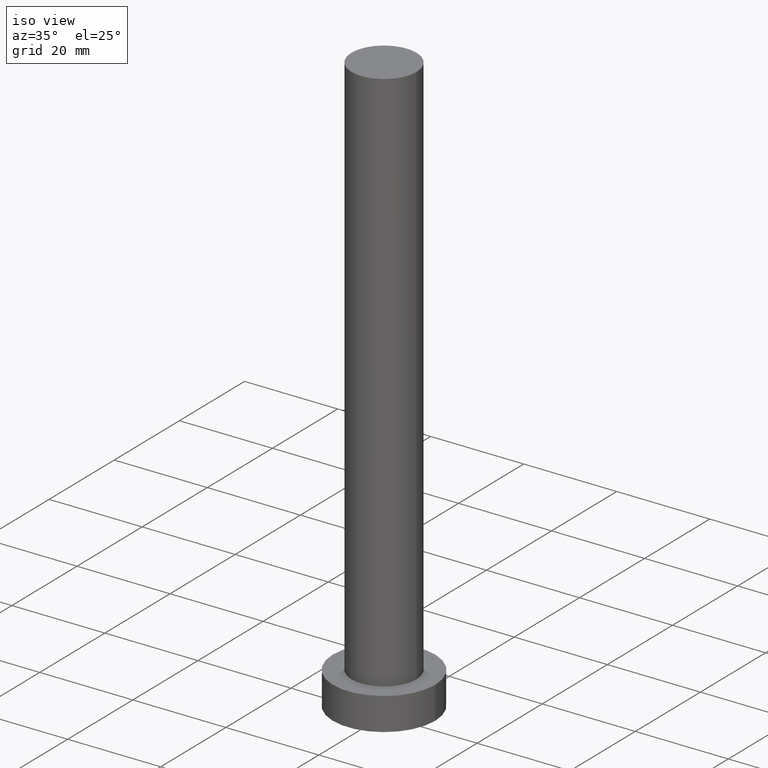
[diagram: clean part render]
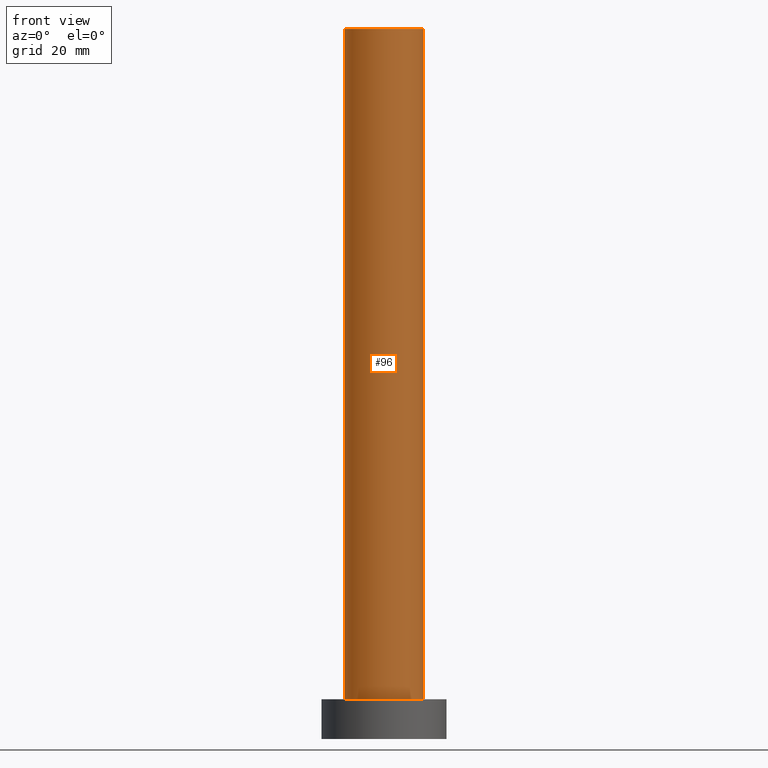
[diagram: tour spotlight — one face highlighted and labeled with its STEP entity id]
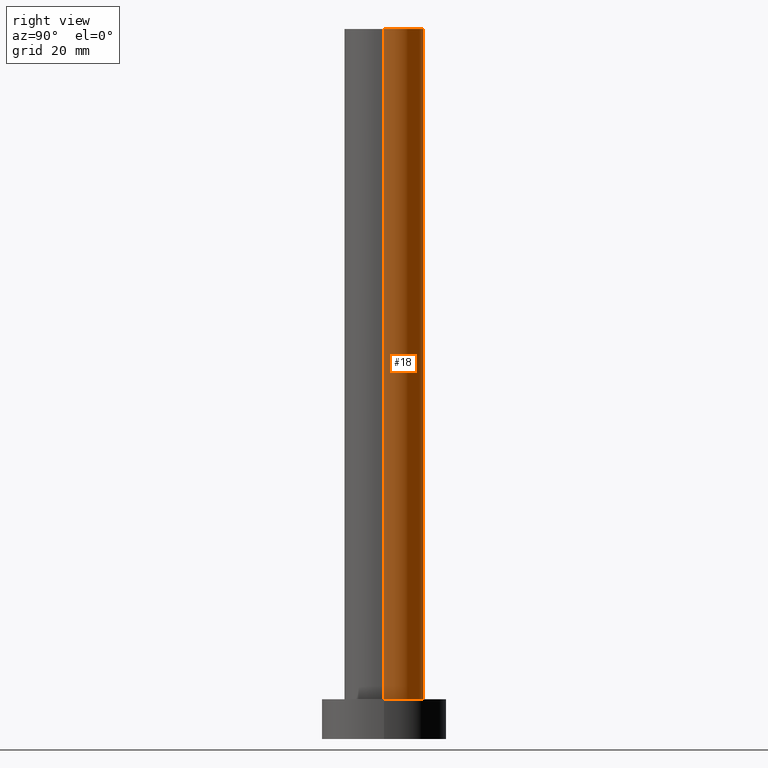
[diagram: tour spotlight — one face highlighted and labeled with its STEP entity id]
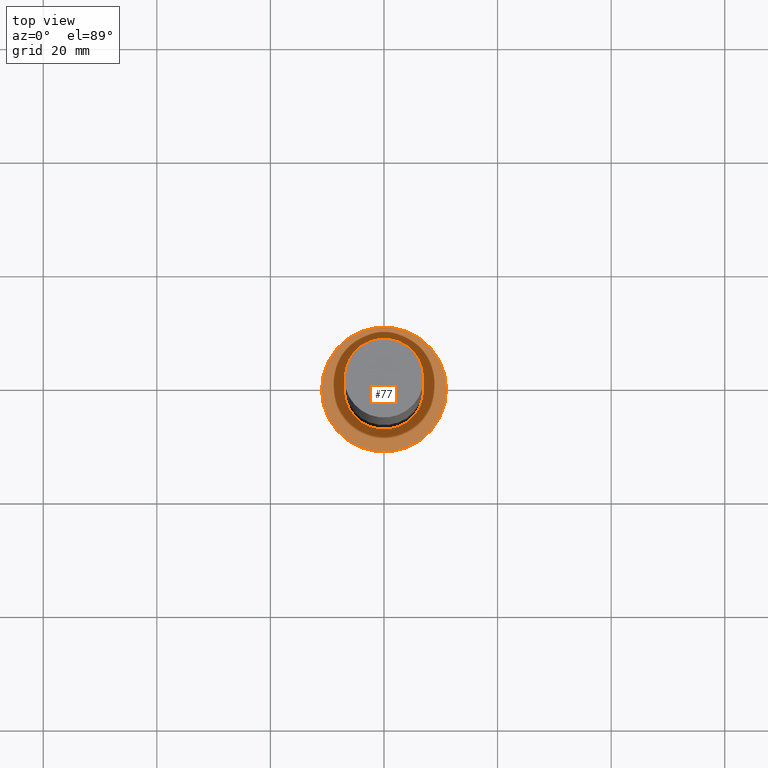
[diagram: tour spotlight — one face highlighted and labeled with its STEP entity id]
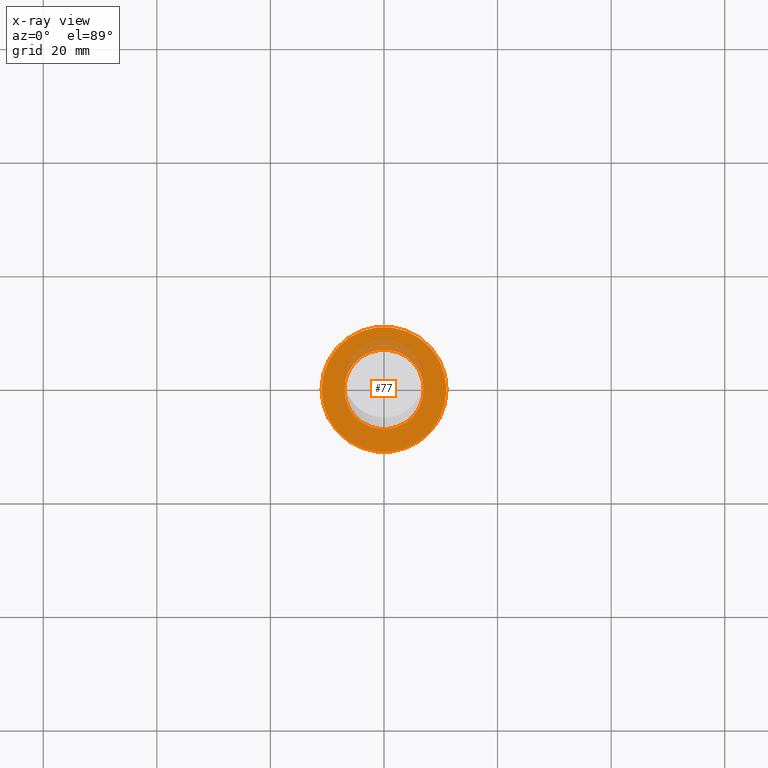
[diagram: x-ray of the same camera — body ghosted, this tour face saturated]
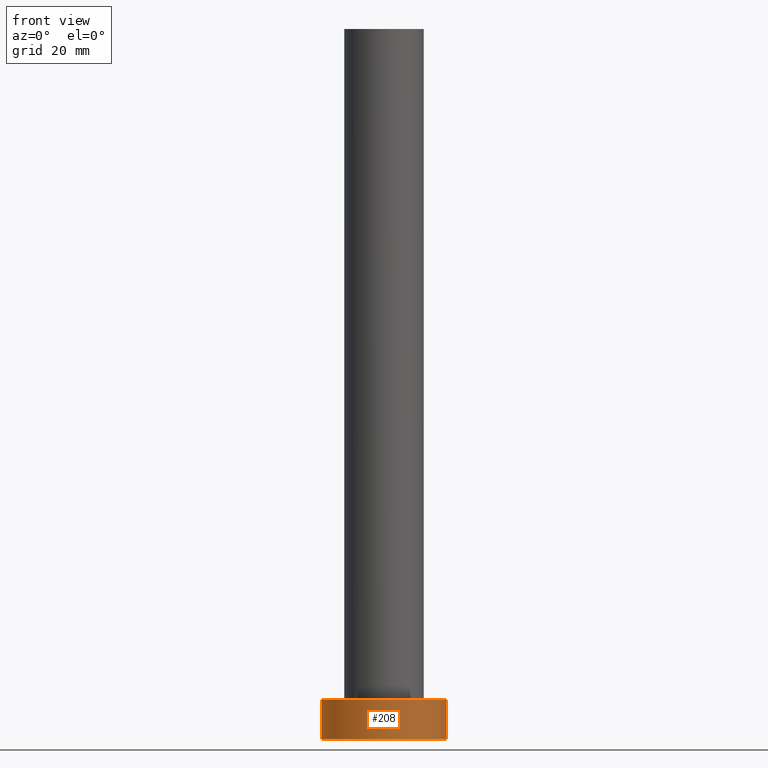
[diagram: tour spotlight — one face highlighted and labeled with its STEP entity id]
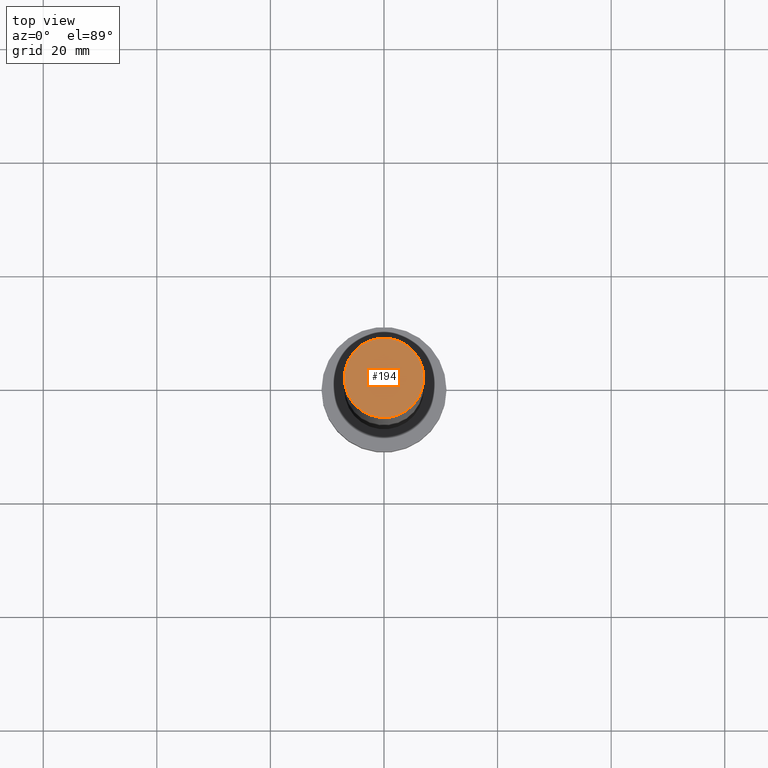
[diagram: tour spotlight — one face highlighted and labeled with its STEP entity id]
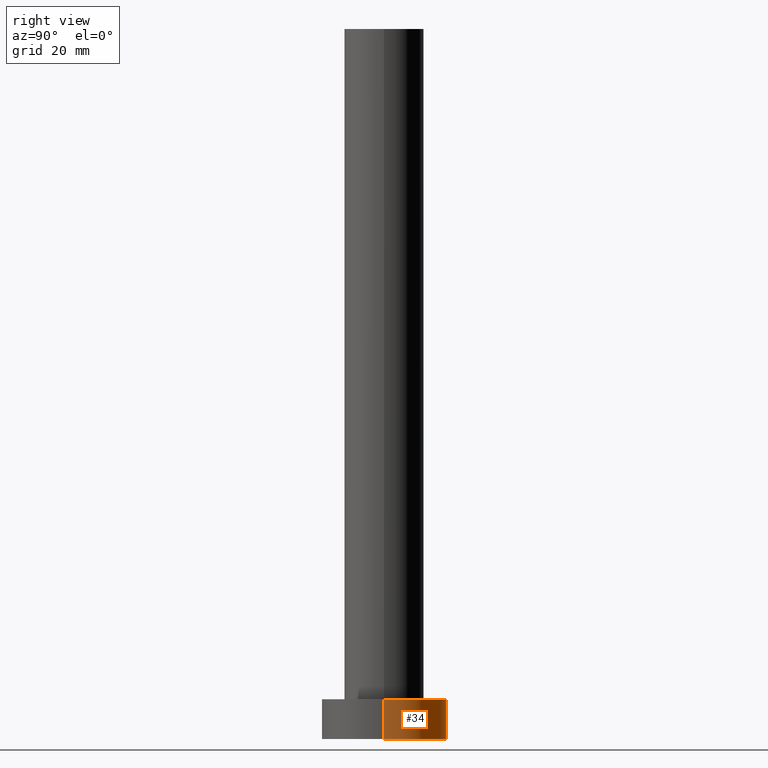
[diagram: tour spotlight — one face highlighted and labeled with its STEP entity id]
A machine part: a face-by-face anatomy tour. The part has 7 B-rep faces; the first image is the clean iso view, then the 6 largest visible faces are spotlighted one at a time (largest first), each with its STEP entity span.

Face 1 — front view, entity #96. In plain terms, the highlighted cylindrical surface (partial cylindrical patch) has radius 7 mm, axis along (-0, -0, -1).
Definition (entity closure, byte-faithful):
#10 = EDGE_LOOP ( 'NONE', ( #71, #46, #120, #207 ) ) ;
#14 = VERTEX_POINT ( 'NONE', #172 ) ;
#23 = CARTESIAN_POINT ( 'NONE',  ( 0.000000000000000000, 0.000000000000000000, 125.0000000000000000 ) ) ;
#28 = CARTESIAN_POINT ( 'NONE',  ( -7.000000000000000888, 0.000000000000000000, 125.0000000000000000 ) ) ;
#33 = DIRECTION ( 'NONE',  ( -0.000000000000000000, -0.000000000000000000, -1.000000000000000000 ) ) ;
#41 = AXIS2_PLACEMENT_3D ( 'NONE', #78, #114, #192 ) ;
#46 = ORIENTED_EDGE ( 'NONE', *, *, #227, .F. ) ;
#53 = CARTESIAN_POINT ( 'NONE',  ( 0.000000000000000000, 0.000000000000000000, 125.0000000000000000 ) ) ;
#55 = CYLINDRICAL_SURFACE ( 'NONE', #204, 7.000000000000000888 ) ;
#60 = CARTESIAN_POINT ( 'NONE',  ( -7.000000000000000888, 0.000000000000000000, 7.000000000000000000 ) ) ;
#71 = ORIENTED_EDGE ( 'NONE', *, *, #150, .F. ) ;
#78 = CARTESIAN_POINT ( 'NONE',  ( 0.000000000000000000, 0.000000000000000000, 7.000000000000000000 ) ) ;
#88 = EDGE_CURVE ( 'NONE', #243, #228, #230, .T. ) ;
#96 = ADVANCED_FACE ( 'NONE', ( #130 ), #55, .T. ) ;
#108 = EDGE_CURVE ( 'NONE', #228, #14, #220, .T. ) ;
#114 = DIRECTION ( 'NONE',  ( 0.000000000000000000, 0.000000000000000000, 1.000000000000000000 ) ) ;
#120 = ORIENTED_EDGE ( 'NONE', *, *, #88, .T. ) ;
#130 = FACE_OUTER_BOUND ( 'NONE', #10, .T. ) ;
#134 = VECTOR ( 'NONE', #33, 1000.000000000000000 ) ;
#137 = DIRECTION ( 'NONE',  ( 1.000000000000000000, 0.000000000000000000, 0.000000000000000000 ) ) ;
#146 = VECTOR ( 'NONE', #211, 1000.000000000000000 ) ;
#149 = CARTESIAN_POINT ( 'NONE',  ( 7.000000000000000888, 8.572527594031474176E-16, 125.0000000000000000 ) ) ;
#150 = EDGE_CURVE ( 'NONE', #167, #14, #193, .T. ) ;
#167 = VERTEX_POINT ( 'NONE', #149 ) ;
#172 = CARTESIAN_POINT ( 'NONE',  ( 7.000000000000000888, 8.572527594031474176E-16, 7.000000000000000000 ) ) ;
#175 = CARTESIAN_POINT ( 'NONE',  ( 7.000000000000000888, 8.572527594031474176E-16, 125.0000000000000000 ) ) ;
#181 = DIRECTION ( 'NONE',  ( 0.000000000000000000, 0.000000000000000000, 1.000000000000000000 ) ) ;
#192 = DIRECTION ( 'NONE',  ( 1.000000000000000000, 0.000000000000000000, 0.000000000000000000 ) ) ;
#193 = LINE ( 'NONE', #175, #146 ) ;
#196 = AXIS2_PLACEMENT_3D ( 'NONE', #23, #181, #137 ) ;
#200 = CIRCLE ( 'NONE', #196, 7.000000000000000888 ) ;
#202 = CARTESIAN_POINT ( 'NONE',  ( -7.000000000000000888, 0.000000000000000000, 125.0000000000000000 ) ) ;
#204 = AXIS2_PLACEMENT_3D ( 'NONE', #53, #214, #252 ) ;
#207 = ORIENTED_EDGE ( 'NONE', *, *, #108, .T. ) ;
#211 = DIRECTION ( 'NONE',  ( -0.000000000000000000, -0.000000000000000000, -1.000000000000000000 ) ) ;
#214 = DIRECTION ( 'NONE',  ( -0.000000000000000000, -0.000000000000000000, -1.000000000000000000 ) ) ;
#220 = CIRCLE ( 'NONE', #41, 7.000000000000000888 ) ;
#227 = EDGE_CURVE ( 'NONE', #243, #167, #200, .T. ) ;
#228 = VERTEX_POINT ( 'NONE', #60 ) ;
#230 = LINE ( 'NONE', #28, #134 ) ;
#243 = VERTEX_POINT ( 'NONE', #202 ) ;
#252 = DIRECTION ( 'NONE',  ( -1.000000000000000000, 0.000000000000000000, 0.000000000000000000 ) ) ;

Face 2 — right view, entity #18. In plain terms, the highlighted cylindrical surface (partial cylindrical patch) has radius 7 mm, axis along (-0, -0, -1).
Definition (entity closure, byte-faithful):
#14 = VERTEX_POINT ( 'NONE', #172 ) ;
#17 = CYLINDRICAL_SURFACE ( 'NONE', #169, 7.000000000000000888 ) ;
#18 = ADVANCED_FACE ( 'NONE', ( #19 ), #17, .T. ) ;
#19 = FACE_OUTER_BOUND ( 'NONE', #122, .T. ) ;
#28 = CARTESIAN_POINT ( 'NONE',  ( -7.000000000000000888, 0.000000000000000000, 125.0000000000000000 ) ) ;
#33 = DIRECTION ( 'NONE',  ( -0.000000000000000000, -0.000000000000000000, -1.000000000000000000 ) ) ;
#50 = ORIENTED_EDGE ( 'NONE', *, *, #150, .T. ) ;
#54 = CIRCLE ( 'NONE', #249, 7.000000000000000888 ) ;
#60 = CARTESIAN_POINT ( 'NONE',  ( -7.000000000000000888, 0.000000000000000000, 7.000000000000000000 ) ) ;
#68 = ORIENTED_EDGE ( 'NONE', *, *, #233, .T. ) ;
#79 = DIRECTION ( 'NONE',  ( 0.000000000000000000, 0.000000000000000000, 1.000000000000000000 ) ) ;
#88 = EDGE_CURVE ( 'NONE', #243, #228, #230, .T. ) ;
#95 = DIRECTION ( 'NONE',  ( -0.000000000000000000, -0.000000000000000000, -1.000000000000000000 ) ) ;
#97 = DIRECTION ( 'NONE',  ( 1.000000000000000000, 0.000000000000000000, 0.000000000000000000 ) ) ;
#116 = DIRECTION ( 'NONE',  ( 1.000000000000000000, 0.000000000000000000, 0.000000000000000000 ) ) ;
#122 = EDGE_LOOP ( 'NONE', ( #142, #50, #68, #246 ) ) ;
#128 = CARTESIAN_POINT ( 'NONE',  ( 0.000000000000000000, 0.000000000000000000, 125.0000000000000000 ) ) ;
#134 = VECTOR ( 'NONE', #33, 1000.000000000000000 ) ;
#138 = EDGE_CURVE ( 'NONE', #167, #243, #253, .T. ) ;
#142 = ORIENTED_EDGE ( 'NONE', *, *, #138, .F. ) ;
#146 = VECTOR ( 'NONE', #211, 1000.000000000000000 ) ;
#149 = CARTESIAN_POINT ( 'NONE',  ( 7.000000000000000888, 8.572527594031474176E-16, 125.0000000000000000 ) ) ;
#150 = EDGE_CURVE ( 'NONE', #167, #14, #193, .T. ) ;
#160 = CARTESIAN_POINT ( 'NONE',  ( 0.000000000000000000, 0.000000000000000000, 7.000000000000000000 ) ) ;
#167 = VERTEX_POINT ( 'NONE', #149 ) ;
#169 = AXIS2_PLACEMENT_3D ( 'NONE', #128, #95, #251 ) ;
#172 = CARTESIAN_POINT ( 'NONE',  ( 7.000000000000000888, 8.572527594031474176E-16, 7.000000000000000000 ) ) ;
#174 = AXIS2_PLACEMENT_3D ( 'NONE', #250, #190, #97 ) ;
#175 = CARTESIAN_POINT ( 'NONE',  ( 7.000000000000000888, 8.572527594031474176E-16, 125.0000000000000000 ) ) ;
#190 = DIRECTION ( 'NONE',  ( 0.000000000000000000, 0.000000000000000000, 1.000000000000000000 ) ) ;
#193 = LINE ( 'NONE', #175, #146 ) ;
#202 = CARTESIAN_POINT ( 'NONE',  ( -7.000000000000000888, 0.000000000000000000, 125.0000000000000000 ) ) ;
#211 = DIRECTION ( 'NONE',  ( -0.000000000000000000, -0.000000000000000000, -1.000000000000000000 ) ) ;
#228 = VERTEX_POINT ( 'NONE', #60 ) ;
#230 = LINE ( 'NONE', #28, #134 ) ;
#233 = EDGE_CURVE ( 'NONE', #14, #228, #54, .T. ) ;
#243 = VERTEX_POINT ( 'NONE', #202 ) ;
#246 = ORIENTED_EDGE ( 'NONE', *, *, #88, .F. ) ;
#249 = AXIS2_PLACEMENT_3D ( 'NONE', #160, #79, #116 ) ;
#250 = CARTESIAN_POINT ( 'NONE',  ( 0.000000000000000000, 0.000000000000000000, 125.0000000000000000 ) ) ;
#251 = DIRECTION ( 'NONE',  ( -1.000000000000000000, 0.000000000000000000, 0.000000000000000000 ) ) ;
#253 = CIRCLE ( 'NONE', #174, 7.000000000000000888 ) ;

Face 3 — top view, entity #77. An x-ray twin of the same camera follows (body ghosted, this face saturated) — the face is partly hidden behind the body. In plain terms, the highlighted planar face has unit normal (0, 0, 1).
Definition (entity closure, byte-faithful):
#14 = VERTEX_POINT ( 'NONE', #172 ) ;
#35 = CARTESIAN_POINT ( 'NONE',  ( 0.000000000000000000, 0.000000000000000000, 7.000000000000000000 ) ) ;
#36 = DIRECTION ( 'NONE',  ( 1.000000000000000000, 0.000000000000000000, 0.000000000000000000 ) ) ;
#41 = AXIS2_PLACEMENT_3D ( 'NONE', #78, #114, #192 ) ;
#45 = VERTEX_POINT ( 'NONE', #93 ) ;
#52 = DIRECTION ( 'NONE',  ( 0.000000000000000000, 0.000000000000000000, 1.000000000000000000 ) ) ;
#54 = CIRCLE ( 'NONE', #249, 7.000000000000000888 ) ;
#58 = ORIENTED_EDGE ( 'NONE', *, *, #117, .T. ) ;
#60 = CARTESIAN_POINT ( 'NONE',  ( -7.000000000000000888, 0.000000000000000000, 7.000000000000000000 ) ) ;
#73 = FACE_BOUND ( 'NONE', #195, .T. ) ;
#77 = ADVANCED_FACE ( 'NONE', ( #73, #231 ), #170, .T. ) ;
#78 = CARTESIAN_POINT ( 'NONE',  ( 0.000000000000000000, 0.000000000000000000, 7.000000000000000000 ) ) ;
#79 = DIRECTION ( 'NONE',  ( 0.000000000000000000, 0.000000000000000000, 1.000000000000000000 ) ) ;
#85 = ORIENTED_EDGE ( 'NONE', *, *, #201, .T. ) ;
#87 = VERTEX_POINT ( 'NONE', #98 ) ;
#93 = CARTESIAN_POINT ( 'NONE',  ( 11.00000000000000000, 1.347111479062088405E-15, 7.000000000000000000 ) ) ;
#98 = CARTESIAN_POINT ( 'NONE',  ( -11.00000000000000000, 0.000000000000000000, 7.000000000000000000 ) ) ;
#101 = AXIS2_PLACEMENT_3D ( 'NONE', #127, #109, #111 ) ;
#108 = EDGE_CURVE ( 'NONE', #228, #14, #220, .T. ) ;
#109 = DIRECTION ( 'NONE',  ( 0.000000000000000000, 0.000000000000000000, 1.000000000000000000 ) ) ;
#111 = DIRECTION ( 'NONE',  ( 1.000000000000000000, 0.000000000000000000, 0.000000000000000000 ) ) ;
#114 = DIRECTION ( 'NONE',  ( 0.000000000000000000, 0.000000000000000000, 1.000000000000000000 ) ) ;
#115 = DIRECTION ( 'NONE',  ( 0.000000000000000000, 0.000000000000000000, 1.000000000000000000 ) ) ;
#116 = DIRECTION ( 'NONE',  ( 1.000000000000000000, 0.000000000000000000, 0.000000000000000000 ) ) ;
#117 = EDGE_CURVE ( 'NONE', #45, #87, #198, .T. ) ;
#127 = CARTESIAN_POINT ( 'NONE',  ( 0.000000000000000000, 0.000000000000000000, 7.000000000000000000 ) ) ;
#148 = DIRECTION ( 'NONE',  ( 1.000000000000000000, 0.000000000000000000, -0.000000000000000000 ) ) ;
#156 = AXIS2_PLACEMENT_3D ( 'NONE', #229, #52, #148 ) ;
#160 = CARTESIAN_POINT ( 'NONE',  ( 0.000000000000000000, 0.000000000000000000, 7.000000000000000000 ) ) ;
#163 = EDGE_LOOP ( 'NONE', ( #85, #58 ) ) ;
#170 = PLANE ( 'NONE',  #156 ) ;
#171 = AXIS2_PLACEMENT_3D ( 'NONE', #35, #115, #36 ) ;
#172 = CARTESIAN_POINT ( 'NONE',  ( 7.000000000000000888, 8.572527594031474176E-16, 7.000000000000000000 ) ) ;
#191 = CIRCLE ( 'NONE', #171, 11.00000000000000000 ) ;
#192 = DIRECTION ( 'NONE',  ( 1.000000000000000000, 0.000000000000000000, 0.000000000000000000 ) ) ;
#195 = EDGE_LOOP ( 'NONE', ( #210, #245 ) ) ;
#198 = CIRCLE ( 'NONE', #101, 11.00000000000000000 ) ;
#201 = EDGE_CURVE ( 'NONE', #87, #45, #191, .T. ) ;
#210 = ORIENTED_EDGE ( 'NONE', *, *, #108, .F. ) ;
#220 = CIRCLE ( 'NONE', #41, 7.000000000000000888 ) ;
#228 = VERTEX_POINT ( 'NONE', #60 ) ;
#229 = CARTESIAN_POINT ( 'NONE',  ( 0.000000000000000000, 0.000000000000000000, 7.000000000000000000 ) ) ;
#231 = FACE_OUTER_BOUND ( 'NONE', #163, .T. ) ;
#233 = EDGE_CURVE ( 'NONE', #14, #228, #54, .T. ) ;
#245 = ORIENTED_EDGE ( 'NONE', *, *, #233, .F. ) ;
#249 = AXIS2_PLACEMENT_3D ( 'NONE', #160, #79, #116 ) ;

Face 4 — front view, entity #208. In plain terms, the highlighted cylindrical surface (partial cylindrical patch) has radius 11 mm, axis along (-0, -0, -1).
Definition (entity closure, byte-faithful):
#1 = DIRECTION ( 'NONE',  ( -0.000000000000000000, -0.000000000000000000, -1.000000000000000000 ) ) ;
#3 = CYLINDRICAL_SURFACE ( 'NONE', #226, 11.00000000000000000 ) ;
#15 = LINE ( 'NONE', #112, #123 ) ;
#20 = DIRECTION ( 'NONE',  ( 0.000000000000000000, 0.000000000000000000, 1.000000000000000000 ) ) ;
#26 = EDGE_CURVE ( 'NONE', #70, #76, #106, .T. ) ;
#31 = DIRECTION ( 'NONE',  ( 1.000000000000000000, 0.000000000000000000, 0.000000000000000000 ) ) ;
#35 = CARTESIAN_POINT ( 'NONE',  ( 0.000000000000000000, 0.000000000000000000, 7.000000000000000000 ) ) ;
#36 = DIRECTION ( 'NONE',  ( 1.000000000000000000, 0.000000000000000000, 0.000000000000000000 ) ) ;
#45 = VERTEX_POINT ( 'NONE', #93 ) ;
#48 = EDGE_CURVE ( 'NONE', #87, #70, #15, .T. ) ;
#65 = ORIENTED_EDGE ( 'NONE', *, *, #48, .T. ) ;
#70 = VERTEX_POINT ( 'NONE', #113 ) ;
#76 = VERTEX_POINT ( 'NONE', #147 ) ;
#87 = VERTEX_POINT ( 'NONE', #98 ) ;
#93 = CARTESIAN_POINT ( 'NONE',  ( 11.00000000000000000, 1.347111479062088405E-15, 7.000000000000000000 ) ) ;
#98 = CARTESIAN_POINT ( 'NONE',  ( -11.00000000000000000, 0.000000000000000000, 7.000000000000000000 ) ) ;
#103 = FACE_OUTER_BOUND ( 'NONE', #168, .T. ) ;
#104 = DIRECTION ( 'NONE',  ( -0.000000000000000000, -0.000000000000000000, -1.000000000000000000 ) ) ;
#106 = CIRCLE ( 'NONE', #236, 11.00000000000000000 ) ;
#112 = CARTESIAN_POINT ( 'NONE',  ( -11.00000000000000000, 0.000000000000000000, 7.000000000000000000 ) ) ;
#113 = CARTESIAN_POINT ( 'NONE',  ( -11.00000000000000000, 0.000000000000000000, 0.000000000000000000 ) ) ;
#115 = DIRECTION ( 'NONE',  ( 0.000000000000000000, 0.000000000000000000, 1.000000000000000000 ) ) ;
#123 = VECTOR ( 'NONE', #1, 1000.000000000000000 ) ;
#124 = ORIENTED_EDGE ( 'NONE', *, *, #180, .F. ) ;
#126 = ORIENTED_EDGE ( 'NONE', *, *, #26, .T. ) ;
#139 = VECTOR ( 'NONE', #234, 1000.000000000000000 ) ;
#147 = CARTESIAN_POINT ( 'NONE',  ( 11.00000000000000000, 1.347111479062088405E-15, 0.000000000000000000 ) ) ;
#152 = CARTESIAN_POINT ( 'NONE',  ( 11.00000000000000000, 1.347111479062088405E-15, 7.000000000000000000 ) ) ;
#168 = EDGE_LOOP ( 'NONE', ( #124, #248, #65, #126 ) ) ;
#171 = AXIS2_PLACEMENT_3D ( 'NONE', #35, #115, #36 ) ;
#176 = CARTESIAN_POINT ( 'NONE',  ( 0.000000000000000000, 0.000000000000000000, 0.000000000000000000 ) ) ;
#179 = CARTESIAN_POINT ( 'NONE',  ( 0.000000000000000000, 0.000000000000000000, 7.000000000000000000 ) ) ;
#180 = EDGE_CURVE ( 'NONE', #45, #76, #254, .T. ) ;
#191 = CIRCLE ( 'NONE', #171, 11.00000000000000000 ) ;
#201 = EDGE_CURVE ( 'NONE', #87, #45, #191, .T. ) ;
#208 = ADVANCED_FACE ( 'NONE', ( #103 ), #3, .T. ) ;
#226 = AXIS2_PLACEMENT_3D ( 'NONE', #179, #104, #240 ) ;
#234 = DIRECTION ( 'NONE',  ( -0.000000000000000000, -0.000000000000000000, -1.000000000000000000 ) ) ;
#236 = AXIS2_PLACEMENT_3D ( 'NONE', #176, #20, #31 ) ;
#240 = DIRECTION ( 'NONE',  ( -1.000000000000000000, 0.000000000000000000, 0.000000000000000000 ) ) ;
#248 = ORIENTED_EDGE ( 'NONE', *, *, #201, .F. ) ;
#254 = LINE ( 'NONE', #152, #139 ) ;

Face 5 — top view, entity #194. In plain terms, the highlighted planar face has unit normal (0, 0, 1).
Definition (entity closure, byte-faithful):
#23 = CARTESIAN_POINT ( 'NONE',  ( 0.000000000000000000, 0.000000000000000000, 125.0000000000000000 ) ) ;
#27 = ORIENTED_EDGE ( 'NONE', *, *, #227, .T. ) ;
#38 = CARTESIAN_POINT ( 'NONE',  ( 0.000000000000000000, 0.000000000000000000, 125.0000000000000000 ) ) ;
#56 = FACE_OUTER_BOUND ( 'NONE', #188, .T. ) ;
#97 = DIRECTION ( 'NONE',  ( 1.000000000000000000, 0.000000000000000000, 0.000000000000000000 ) ) ;
#105 = DIRECTION ( 'NONE',  ( 0.000000000000000000, 0.000000000000000000, 1.000000000000000000 ) ) ;
#118 = DIRECTION ( 'NONE',  ( 1.000000000000000000, 0.000000000000000000, -0.000000000000000000 ) ) ;
#132 = PLANE ( 'NONE',  #215 ) ;
#137 = DIRECTION ( 'NONE',  ( 1.000000000000000000, 0.000000000000000000, 0.000000000000000000 ) ) ;
#138 = EDGE_CURVE ( 'NONE', #167, #243, #253, .T. ) ;
#149 = CARTESIAN_POINT ( 'NONE',  ( 7.000000000000000888, 8.572527594031474176E-16, 125.0000000000000000 ) ) ;
#167 = VERTEX_POINT ( 'NONE', #149 ) ;
#174 = AXIS2_PLACEMENT_3D ( 'NONE', #250, #190, #97 ) ;
#181 = DIRECTION ( 'NONE',  ( 0.000000000000000000, 0.000000000000000000, 1.000000000000000000 ) ) ;
#183 = ORIENTED_EDGE ( 'NONE', *, *, #138, .T. ) ;
#188 = EDGE_LOOP ( 'NONE', ( #27, #183 ) ) ;
#190 = DIRECTION ( 'NONE',  ( 0.000000000000000000, 0.000000000000000000, 1.000000000000000000 ) ) ;
#194 = ADVANCED_FACE ( 'NONE', ( #56 ), #132, .T. ) ;
#196 = AXIS2_PLACEMENT_3D ( 'NONE', #23, #181, #137 ) ;
#200 = CIRCLE ( 'NONE', #196, 7.000000000000000888 ) ;
#202 = CARTESIAN_POINT ( 'NONE',  ( -7.000000000000000888, 0.000000000000000000, 125.0000000000000000 ) ) ;
#215 = AXIS2_PLACEMENT_3D ( 'NONE', #38, #105, #118 ) ;
#227 = EDGE_CURVE ( 'NONE', #243, #167, #200, .T. ) ;
#243 = VERTEX_POINT ( 'NONE', #202 ) ;
#250 = CARTESIAN_POINT ( 'NONE',  ( 0.000000000000000000, 0.000000000000000000, 125.0000000000000000 ) ) ;
#253 = CIRCLE ( 'NONE', #174, 7.000000000000000888 ) ;

Face 6 — right view, entity #34. In plain terms, the highlighted cylindrical surface (partial cylindrical patch) has radius 11 mm, axis along (-0, -0, -1).
Definition (entity closure, byte-faithful):
#1 = DIRECTION ( 'NONE',  ( -0.000000000000000000, -0.000000000000000000, -1.000000000000000000 ) ) ;
#5 = AXIS2_PLACEMENT_3D ( 'NONE', #173, #133, #72 ) ;
#15 = LINE ( 'NONE', #112, #123 ) ;
#30 = CARTESIAN_POINT ( 'NONE',  ( 0.000000000000000000, 0.000000000000000000, 0.000000000000000000 ) ) ;
#32 = DIRECTION ( 'NONE',  ( 1.000000000000000000, 0.000000000000000000, 0.000000000000000000 ) ) ;
#34 = ADVANCED_FACE ( 'NONE', ( #189 ), #218, .T. ) ;
#45 = VERTEX_POINT ( 'NONE', #93 ) ;
#47 = EDGE_LOOP ( 'NONE', ( #225, #90, #165, #145 ) ) ;
#48 = EDGE_CURVE ( 'NONE', #87, #70, #15, .T. ) ;
#70 = VERTEX_POINT ( 'NONE', #113 ) ;
#72 = DIRECTION ( 'NONE',  ( -1.000000000000000000, 0.000000000000000000, 0.000000000000000000 ) ) ;
#74 = DIRECTION ( 'NONE',  ( 0.000000000000000000, 0.000000000000000000, 1.000000000000000000 ) ) ;
#76 = VERTEX_POINT ( 'NONE', #147 ) ;
#87 = VERTEX_POINT ( 'NONE', #98 ) ;
#90 = ORIENTED_EDGE ( 'NONE', *, *, #180, .T. ) ;
#93 = CARTESIAN_POINT ( 'NONE',  ( 11.00000000000000000, 1.347111479062088405E-15, 7.000000000000000000 ) ) ;
#98 = CARTESIAN_POINT ( 'NONE',  ( -11.00000000000000000, 0.000000000000000000, 7.000000000000000000 ) ) ;
#101 = AXIS2_PLACEMENT_3D ( 'NONE', #127, #109, #111 ) ;
#107 = AXIS2_PLACEMENT_3D ( 'NONE', #30, #74, #32 ) ;
#109 = DIRECTION ( 'NONE',  ( 0.000000000000000000, 0.000000000000000000, 1.000000000000000000 ) ) ;
#111 = DIRECTION ( 'NONE',  ( 1.000000000000000000, 0.000000000000000000, 0.000000000000000000 ) ) ;
#112 = CARTESIAN_POINT ( 'NONE',  ( -11.00000000000000000, 0.000000000000000000, 7.000000000000000000 ) ) ;
#113 = CARTESIAN_POINT ( 'NONE',  ( -11.00000000000000000, 0.000000000000000000, 0.000000000000000000 ) ) ;
#117 = EDGE_CURVE ( 'NONE', #45, #87, #198, .T. ) ;
#123 = VECTOR ( 'NONE', #1, 1000.000000000000000 ) ;
#127 = CARTESIAN_POINT ( 'NONE',  ( 0.000000000000000000, 0.000000000000000000, 7.000000000000000000 ) ) ;
#133 = DIRECTION ( 'NONE',  ( -0.000000000000000000, -0.000000000000000000, -1.000000000000000000 ) ) ;
#139 = VECTOR ( 'NONE', #234, 1000.000000000000000 ) ;
#145 = ORIENTED_EDGE ( 'NONE', *, *, #48, .F. ) ;
#147 = CARTESIAN_POINT ( 'NONE',  ( 11.00000000000000000, 1.347111479062088405E-15, 0.000000000000000000 ) ) ;
#152 = CARTESIAN_POINT ( 'NONE',  ( 11.00000000000000000, 1.347111479062088405E-15, 7.000000000000000000 ) ) ;
#154 = EDGE_CURVE ( 'NONE', #76, #70, #157, .T. ) ;
#157 = CIRCLE ( 'NONE', #107, 11.00000000000000000 ) ;
#165 = ORIENTED_EDGE ( 'NONE', *, *, #154, .T. ) ;
#173 = CARTESIAN_POINT ( 'NONE',  ( 0.000000000000000000, 0.000000000000000000, 7.000000000000000000 ) ) ;
#180 = EDGE_CURVE ( 'NONE', #45, #76, #254, .T. ) ;
#189 = FACE_OUTER_BOUND ( 'NONE', #47, .T. ) ;
#198 = CIRCLE ( 'NONE', #101, 11.00000000000000000 ) ;
#218 = CYLINDRICAL_SURFACE ( 'NONE', #5, 11.00000000000000000 ) ;
#225 = ORIENTED_EDGE ( 'NONE', *, *, #117, .F. ) ;
#234 = DIRECTION ( 'NONE',  ( -0.000000000000000000, -0.000000000000000000, -1.000000000000000000 ) ) ;
#254 = LINE ( 'NONE', #152, #139 ) ;